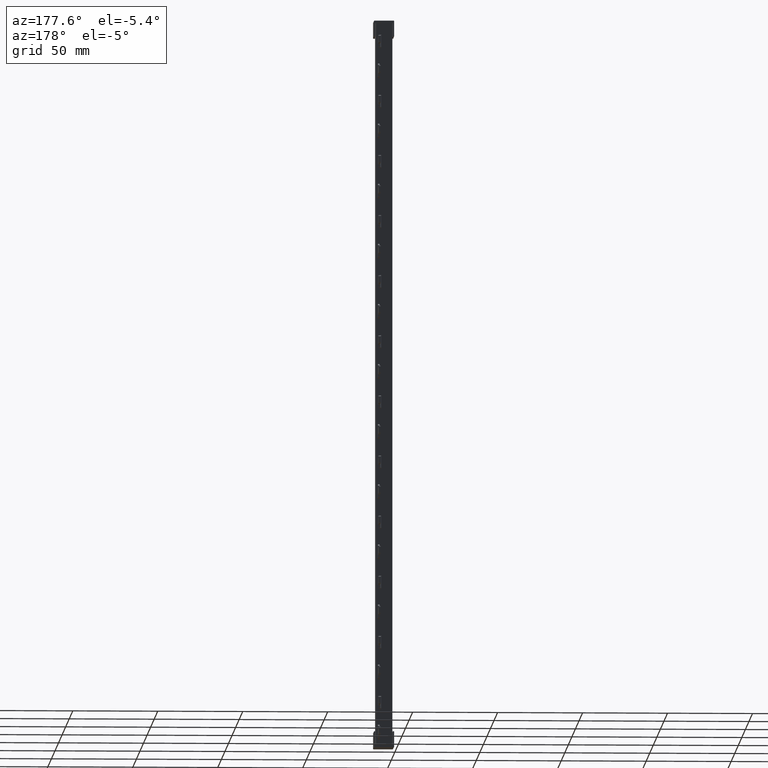
[diagram: clean part render]
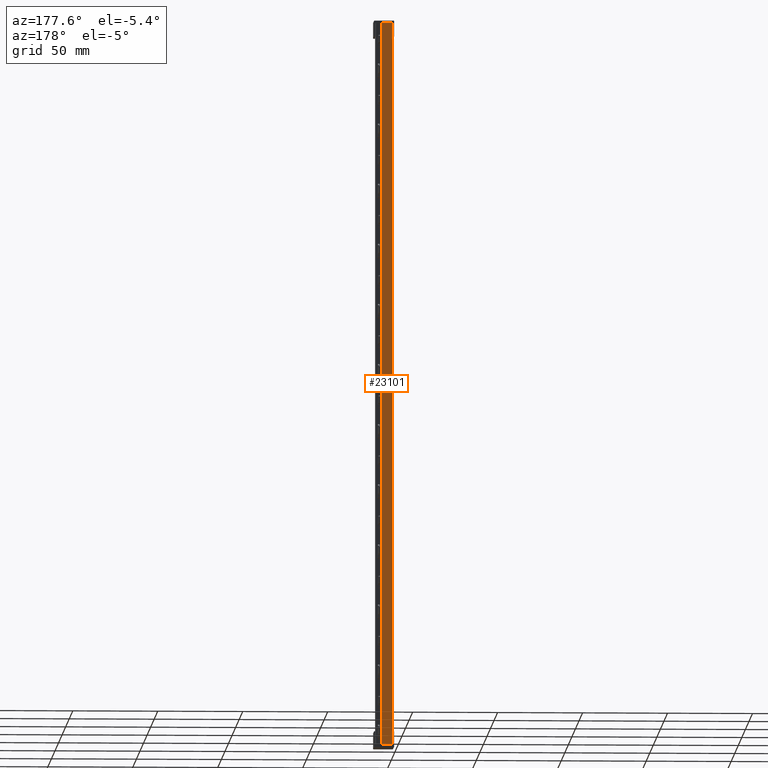
[diagram: same view with one face highlighted and labeled with its STEP entity id]
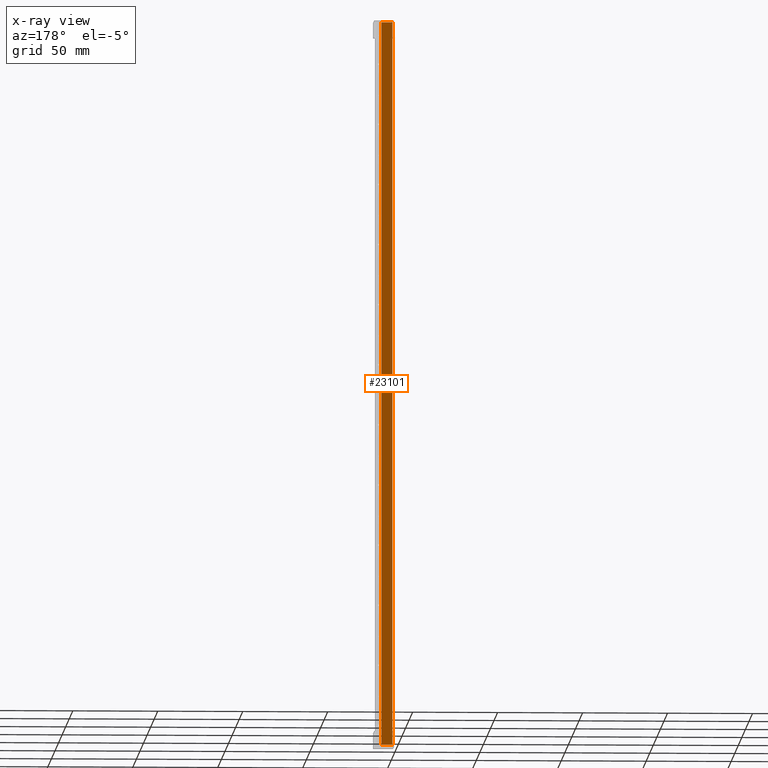
[diagram: x-ray of the same camera — body ghosted, the highlighted face saturated]
A machine part, auxiliary view. The second image highlights one B-rep face of the part: STEP entity #23101.
The next image is the same camera in x-ray: the body ghosted, the highlighted face saturated — about 0% of this face is hidden behind the body in this view.
In plain terms, the highlighted planar face has unit normal (0, -1, 0).
Its self-contained STEP definition (entity closure, byte-faithful):
#450 = AXIS2_PLACEMENT_3D ( 'NONE', #22154, #22116, #22086 ) ;
#9361 = VERTEX_POINT ( 'NONE', #18167 ) ;
#9968 = VERTEX_POINT ( 'NONE', #18216 ) ;
#9993 = VERTEX_POINT ( 'NONE', #18240 ) ;
#13779 = ORIENTED_EDGE ( 'NONE', *, *, #37756, .F. ) ;
#13862 = ORIENTED_EDGE ( 'NONE', *, *, #37847, .T. ) ;
#13917 = ORIENTED_EDGE ( 'NONE', *, *, #37952, .F. ) ;
#13947 = ORIENTED_EDGE ( 'NONE', *, *, #37780, .F. ) ;
#14375 = VECTOR ( 'NONE', #30719, 1000.000000000000000 ) ;
#14420 = VECTOR ( 'NONE', #30887, 1000.000000000000000 ) ;
#14909 = VECTOR ( 'NONE', #30593, 1000.000000000000000 ) ;
#14927 = VECTOR ( 'NONE', #30612, 1000.000000000000000 ) ;
#18167 = CARTESIAN_POINT ( 'NONE',  ( 6.499999999999950300, 14.99999999999998600, 217.7999999999999800 ) ) ;
#18216 = CARTESIAN_POINT ( 'NONE',  ( 0.0000000000000000000, 14.99999999999998600, -208.8000000000003000 ) ) ;
#18240 = CARTESIAN_POINT ( 'NONE',  ( 0.0000000000000000000, 14.99999999999998600, 217.7999999999999800 ) ) ;
#22082 = PLANE ( 'NONE',  #450 ) ;
#22086 = DIRECTION ( 'NONE',  ( 0.0000000000000000000, -0.0000000000000000000, -1.000000000000000000 ) ) ;
#22101 = FACE_OUTER_BOUND ( 'NONE', #33812, .T. ) ;
#22116 = DIRECTION ( 'NONE',  ( 0.0000000000000000000, -1.000000000000000000, 0.0000000000000000000 ) ) ;
#22154 = CARTESIAN_POINT ( 'NONE',  ( 6.499999999999950300, 14.99999999999998600, 219.0000000000000000 ) ) ;
#23101 = ADVANCED_FACE ( 'NONE', ( #22101 ), #22082, .F. ) ;
#23543 = VERTEX_POINT ( 'NONE', #23656 ) ;
#23656 = CARTESIAN_POINT ( 'NONE',  ( 6.499999999999950300, 14.99999999999998600, -208.8000000000002400 ) ) ;
#30559 = CARTESIAN_POINT ( 'NONE',  ( 6.499999999999950300, 14.99999999999998600, 219.0000000000000000 ) ) ;
#30589 = LINE ( 'NONE', #30559, #14909 ) ;
#30593 = DIRECTION ( 'NONE',  ( -0.0000000000000000000, 0.0000000000000000000, 1.000000000000000000 ) ) ;
#30612 = DIRECTION ( 'NONE',  ( 1.000000000000000000, 0.0000000000000000000, 0.0000000000000000000 ) ) ;
#30621 = LINE ( 'NONE', #30622, #14927 ) ;
#30622 = CARTESIAN_POINT ( 'NONE',  ( 6.499999999999950300, 14.99999999999998600, -208.8000000000008100 ) ) ;
#30707 = CARTESIAN_POINT ( 'NONE',  ( 0.0000000000000000000, 14.99999999999998600, 219.0000000000000000 ) ) ;
#30719 = DIRECTION ( 'NONE',  ( -0.0000000000000000000, -0.0000000000000000000, 1.000000000000000000 ) ) ;
#30745 = LINE ( 'NONE', #30707, #14375 ) ;
#30850 = CARTESIAN_POINT ( 'NONE',  ( 6.499999999999950300, 14.99999999999998600, 217.7999999999999800 ) ) ;
#30883 = LINE ( 'NONE', #30850, #14420 ) ;
#30887 = DIRECTION ( 'NONE',  ( -1.000000000000000000, -0.0000000000000000000, -0.0000000000000000000 ) ) ;
#33812 = EDGE_LOOP ( 'NONE', ( #13917, #13779, #13947, #13862 ) ) ;
#37756 = EDGE_CURVE ( 'NONE', #23543, #9361, #30589, .T. ) ;
#37780 = EDGE_CURVE ( 'NONE', #9968, #23543, #30621, .T. ) ;
#37847 = EDGE_CURVE ( 'NONE', #9968, #9993, #30745, .T. ) ;
#37952 = EDGE_CURVE ( 'NONE', #9361, #9993, #30883, .T. ) ;